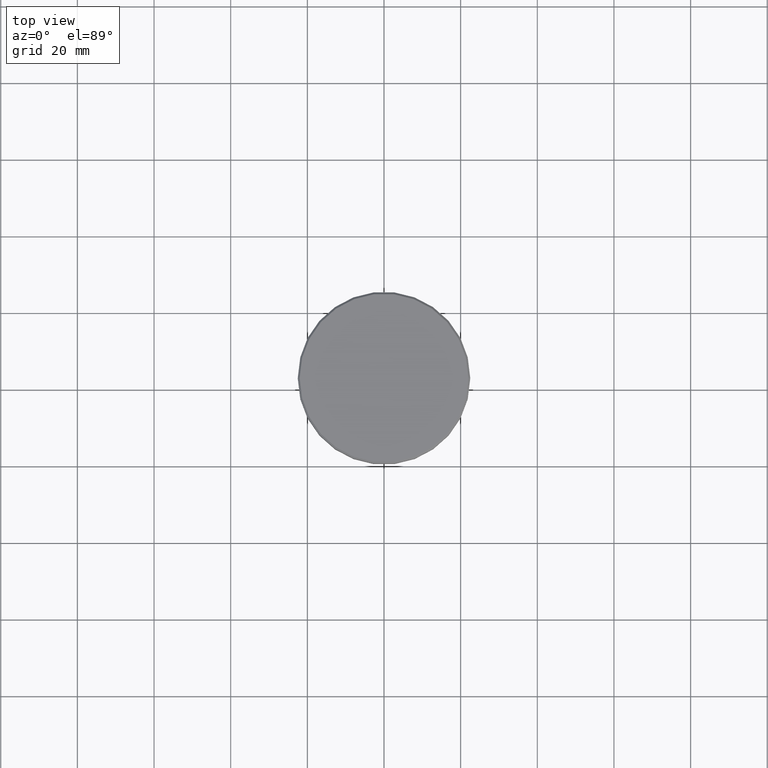
[diagram: clean part render]
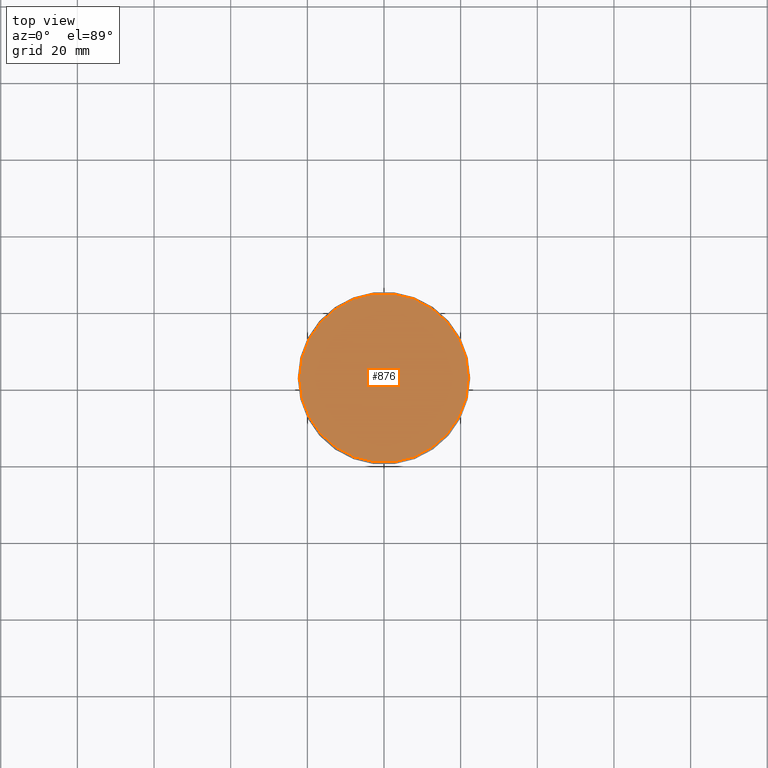
[diagram: same view with one face highlighted and labeled with its STEP entity id]
A machine part, top view. The second image highlights one B-rep face of the part: STEP entity #876.
In plain terms, the highlighted planar face has unit normal (0, -0, 1).
Its self-contained STEP definition (entity closure, byte-faithful):
#30 = CARTESIAN_POINT ( 'NONE',  ( 0.000000000000000000, 0.000000000000000000, 0.000000000000000000 ) ) ;
#79 = AXIS2_PLACEMENT_3D ( 'NONE', #30, #676, #771 ) ;
#103 = DIRECTION ( 'NONE',  ( 1.000000000000000000, 0.000000000000000000, 0.000000000000000000 ) ) ;
#132 = CIRCLE ( 'NONE', #79, 21.99999999999999289 ) ;
#180 = CARTESIAN_POINT ( 'NONE',  ( 0.000000000000000000, 0.000000000000000000, 0.000000000000000000 ) ) ;
#230 = CIRCLE ( 'NONE', #895, 21.99999999999999289 ) ;
#256 = EDGE_LOOP ( 'NONE', ( #429, #751 ) ) ;
#429 = ORIENTED_EDGE ( 'NONE', *, *, #1071, .T. ) ;
#443 = FACE_OUTER_BOUND ( 'NONE', #256, .T. ) ;
#625 = CARTESIAN_POINT ( 'NONE',  ( 21.99999999999999289, 2.724839128102860202E-15, 0.000000000000000000 ) ) ;
#676 = DIRECTION ( 'NONE',  ( -0.000000000000000000, -0.000000000000000000, 1.000000000000000000 ) ) ;
#680 = PLANE ( 'NONE',  #929 ) ;
#731 = EDGE_CURVE ( 'NONE', #1120, #883, #132, .T. ) ;
#751 = ORIENTED_EDGE ( 'NONE', *, *, #731, .T. ) ;
#771 = DIRECTION ( 'NONE',  ( 1.000000000000000000, 0.000000000000000000, 0.000000000000000000 ) ) ;
#801 = DIRECTION ( 'NONE',  ( -0.000000000000000000, -0.000000000000000000, 1.000000000000000000 ) ) ;
#876 = ADVANCED_FACE ( 'NONE', ( #443 ), #680, .T. ) ;
#883 = VERTEX_POINT ( 'NONE', #904 ) ;
#895 = AXIS2_PLACEMENT_3D ( 'NONE', #180, #801, #103 ) ;
#904 = CARTESIAN_POINT ( 'NONE',  ( -21.99999999999999289, 0.000000000000000000, 0.000000000000000000 ) ) ;
#929 = AXIS2_PLACEMENT_3D ( 'NONE', #1048, #957, #1096 ) ;
#957 = DIRECTION ( 'NONE',  ( 0.000000000000000000, -0.000000000000000000, 1.000000000000000000 ) ) ;
#1048 = CARTESIAN_POINT ( 'NONE',  ( 0.000000000000000000, 0.000000000000000000, 0.000000000000000000 ) ) ;
#1071 = EDGE_CURVE ( 'NONE', #883, #1120, #230, .T. ) ;
#1096 = DIRECTION ( 'NONE',  ( 1.000000000000000000, 0.000000000000000000, 0.000000000000000000 ) ) ;
#1120 = VERTEX_POINT ( 'NONE', #625 ) ;